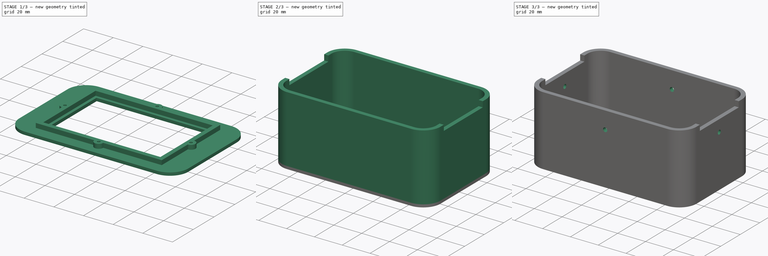
[diagram: build sequence overview — one tinted view per stage of 3, left to right]
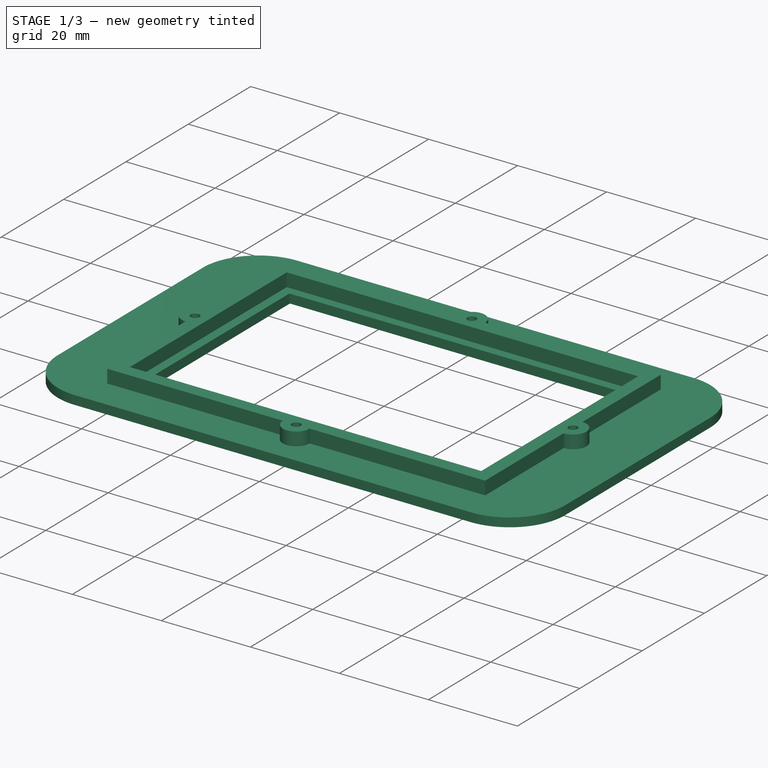
[diagram: stage 1 of 3 — iso view after this stage's code; geometry added in this stage tinted green]
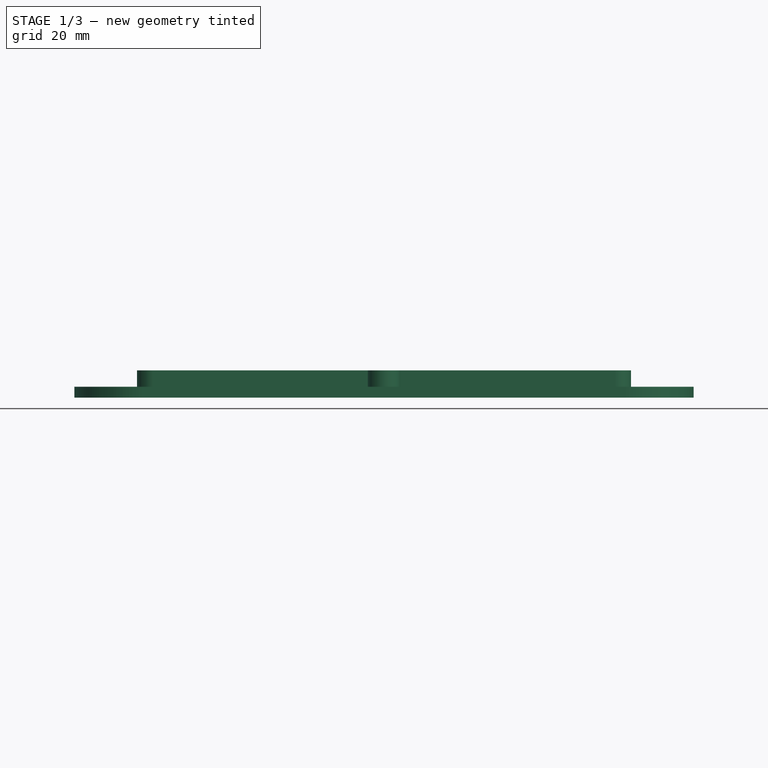
[diagram: stage 1 of 3 — front view after this stage's code; geometry added in this stage tinted green]
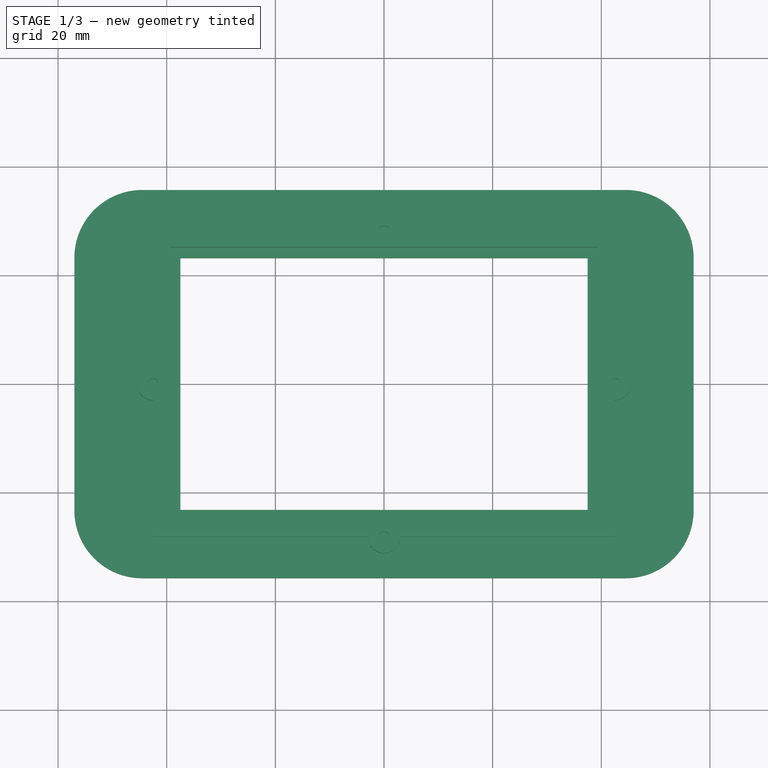
[diagram: stage 1 of 3 — top view after this stage's code; geometry added in this stage tinted green]
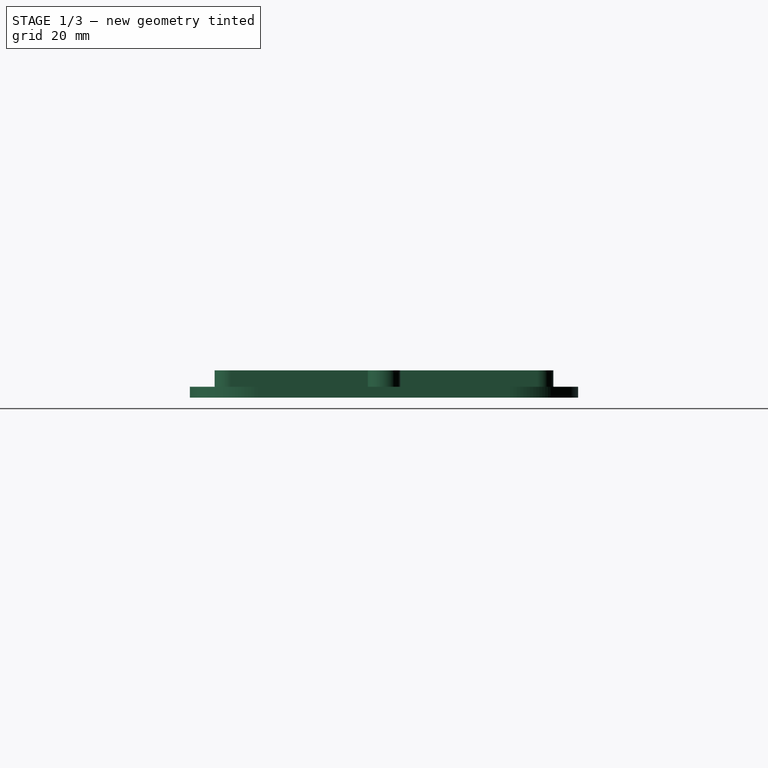
[diagram: stage 1 of 3 — right view after this stage's code; geometry added in this stage tinted green]
FCSTD DOCUMENT  (FreeCAD 0.20R29603 (Git))
Label: shell
License: All rights reserved
LicenseURL: http://en.wikipedia.org/wiki/All_rights_reserved
objects: Sketcher::SketchObject×6, PartDesign::Pad×4, PartDesign::Pocket×2, PartDesign::PolarPattern×1, PartDesign::Body×1
note: 20 computed .brp shape members not serialized (recipe doc carries the construction recipe); baked Part::Feature solids carry a one-line shape summary decoded from their .brp

FEATURE [Sketcher::SketchObject] Sketch002  label="pcb"
  FullyConstrained = true
  MapMode = 5
  Support = -> [XY_Plane]
  sketch-geometry (9):
    g0: Circle CenterX=-46 CenterY=24.735 CenterZ=0 NormalX=0 NormalY=0 NormalZ=1 AngleXU=0 Radius=1
    g1: Circle CenterX=46 CenterY=24.735 CenterZ=0 NormalX=0 NormalY=0 NormalZ=1 AngleXU=0 Radius=1
    g2: Circle CenterX=46 CenterY=-24.735 CenterZ=0 NormalX=0 NormalY=0 NormalZ=1 AngleXU=0 Radius=1
    g3: Circle CenterX=-46 CenterY=-24.735 CenterZ=0 NormalX=0 NormalY=0 NormalZ=1 AngleXU=0 Radius=1
    g4: Circle CenterX=-46 CenterY=24.735 CenterZ=0 NormalX=0 NormalY=0 NormalZ=1 AngleXU=0 Radius=3
    g5: Circle CenterX=46 CenterY=24.735 CenterZ=0 NormalX=0 NormalY=0 NormalZ=1 AngleXU=0 Radius=3
    g6: Circle CenterX=46 CenterY=-24.735 CenterZ=0 NormalX=0 NormalY=0 NormalZ=1 AngleXU=0 Radius=3
    g7: Circle CenterX=-46 CenterY=-24.735 CenterZ=0 NormalX=0 NormalY=0 NormalZ=1 AngleXU=0 Radius=3
    g8: GeomPoint X=-46 Y=24.735 Z=0
  constraints (18):
    c: Coincident(g4,g0)
    c: Coincident(g5,g1)
    c: Coincident(g6,g2)
    c: Coincident(g7,g3)
    c: Equal(g3,g0)
    c: Equal(g0,g1)
    c: Equal(g1,g2)
    c: Diameter(g0) = 2
    c: Equal(g5,g4)
    c: Equal(g4,g7)
    c: Equal(g7,g6)
    c: Diameter(g4) = 6
    c: Symmetric(g0,g3,g-1)
    c: Symmetric(g0,g1,g-2)
    c: Symmetric(g1,g2,g-1)
    c: DistanceX(g0,g1) = 92
    c: DistanceY(g3,g0) = 49.47
    c: Coincident(g8,g0)
FEATURE [Sketcher::SketchObject] Sketch001  label="front"
  ExternalGeometry = -> [Sketch002]
  FullyConstrained = true
  MapMode = 5
  Support = -> [XY_Plane]
  sketch-geometry (15):
    g0: GeomPoint X=0 Y=0 Z=0
    g1: LineSegment StartX=-57 StartY=23.235 StartZ=0 EndX=-57 EndY=-23.235 EndZ=0
    g2: LineSegment StartX=-44.5 StartY=-35.735 StartZ=0 EndX=44.5 EndY=-35.735 EndZ=0
    g3: LineSegment StartX=57 StartY=-23.235 StartZ=0 EndX=57 EndY=23.235 EndZ=0
    g4: LineSegment StartX=44.5 StartY=35.735 StartZ=0 EndX=-44.5 EndY=35.735 EndZ=0
    g5: GeomPoint X=0 Y=0 Z=0
    g6: LineSegment StartX=-37.48 StartY=23.17 StartZ=0 EndX=-37.48 EndY=-23.17 EndZ=0
    g7: LineSegment StartX=-37.48 StartY=-23.17 StartZ=0 EndX=37.48 EndY=-23.17 EndZ=0
    g8: LineSegment StartX=37.48 StartY=-23.17 StartZ=0 EndX=37.48 EndY=23.17 EndZ=0
    g9: LineSegment StartX=37.48 StartY=23.17 StartZ=0 EndX=-37.48 EndY=23.17 EndZ=0
    g10: GeomPoint X=0 Y=0 Z=0
    g11: ArcOfCircle CenterX=-44.5 CenterY=23.235 CenterZ=0 NormalX=0 NormalY=0 NormalZ=1 AngleXU=0 Radius=12.5 StartAngle=1.5708 EndAngle=3.14159
    g12: ArcOfCircle CenterX=44.5 CenterY=23.235 CenterZ=0 NormalX=0 NormalY=0 NormalZ=1 AngleXU=0 Radius=12.5 StartAngle=0 EndAngle=1.5708
    g13: ArcOfCircle CenterX=44.5 CenterY=-23.235 CenterZ=0 NormalX=0 NormalY=0 NormalZ=1 AngleXU=0 Radius=12.5 StartAngle=4.71239 EndAngle=6.28319
    g14: ArcOfCircle CenterX=-44.5 CenterY=-23.235 CenterZ=0 NormalX=0 NormalY=0 NormalZ=1 AngleXU=0 Radius=12.5 StartAngle=3.14159 EndAngle=4.71239
  constraints (33):
    c: Coincident(g0,g-1)
    c: Horizontal(g2)
    c: Horizontal(g4)
    c: Vertical(g1)
    c: Vertical(g3)
    c: Coincident(g5,g0)
    c: Coincident(g6,g7)
    c: Coincident(g7,g8)
    c: Coincident(g8,g9)
    c: Coincident(g9,g6)
    c: Horizontal(g7)
    c: Horizontal(g9)
    c: Vertical(g6)
    c: Vertical(g8)
    c: Symmetric(g7,g6,g10)
    c: Coincident(g10,g0)
    c: DistanceX(g9,g9) = 74.96
    c: DistanceY(g6,g6) = 46.34
    c: Tangent(g4,g11) = -1.5708
    c: Tangent(g1,g11) = -1.5708
    c: Tangent(g4,g12) = -1.5708
    c: Tangent(g3,g12) = -1.5708
    c: Tangent(g3,g13) = -1.5708
    c: Tangent(g2,g13) = -1.5708
    c: Tangent(g1,g14) = -1.5708
    c: Tangent(g2,g14) = -1.5708
    c: Equal(g14,g11)
    c: Equal(g11,g12)
    c: Equal(g11,g13)
    c: Diameter(g11) = 25
    c: Symmetric(g13,g11,g0)
    c: DistanceX(g1,g-3) = 11
    c: DistanceY(g-3,g4) = 11
FEATURE [Sketcher::SketchObject] Sketch  label="glass"
  ExternalGeometry = -> [Sketch001]
  FullyConstrained = true
  MapMode = 5
  Support = -> [XY_Plane]
  sketch-geometry (20):
    g0: Circle CenterX=42.48 CenterY=0 CenterZ=0 NormalX=0 NormalY=0 NormalZ=1 AngleXU=0 Radius=1
    g1: Circle CenterX=0 CenterY=-28.17 CenterZ=0 NormalX=0 NormalY=0 NormalZ=1 AngleXU=0 Radius=1
    g2: Circle CenterX=-42.48 CenterY=0 CenterZ=0 NormalX=0 NormalY=0 NormalZ=1 AngleXU=0 Radius=1
    g3: Circle CenterX=0 CenterY=28.17 CenterZ=0 NormalX=0 NormalY=0 NormalZ=1 AngleXU=0 Radius=1
    g4: LineSegment StartX=39.48 StartY=-25.17 StartZ=0 EndX=39.48 EndY=25.17 EndZ=0
    g5: LineSegment StartX=39.48 StartY=25.17 StartZ=0 EndX=-39.48 EndY=25.17 EndZ=0
    g6: LineSegment StartX=-39.48 StartY=25.17 StartZ=0 EndX=-39.48 EndY=-25.17 EndZ=0
    g7: LineSegment StartX=-39.48 StartY=-25.17 StartZ=0 EndX=39.48 EndY=-25.17 EndZ=0
    g8: LineSegment StartX=-42.48 StartY=28.17 StartZ=0 EndX=-3 EndY=28.17 EndZ=0
    g9: LineSegment StartX=3 StartY=28.17 StartZ=0 EndX=42.48 EndY=28.17 EndZ=0
    g10: LineSegment StartX=-42.48 StartY=28.17 StartZ=0 EndX=-42.48 EndY=3 EndZ=0
    g11: LineSegment StartX=-42.48 StartY=-3 StartZ=0 EndX=-42.48 EndY=-28.17 EndZ=0
    g12: LineSegment StartX=-42.48 StartY=-28.17 StartZ=0 EndX=-3 EndY=-28.17 EndZ=0
    g13: LineSegment StartX=3 StartY=-28.17 StartZ=0 EndX=42.48 EndY=-28.17 EndZ=0
    g14: LineSegment StartX=42.48 StartY=28.17 StartZ=0 EndX=42.48 EndY=3 EndZ=0
    g15: LineSegment StartX=42.48 StartY=-3 StartZ=0 EndX=42.48 EndY=-28.17 EndZ=0
    g16: ArcOfCircle CenterX=-42.48 CenterY=0 CenterZ=0 NormalX=0 NormalY=0 NormalZ=1 AngleXU=0 Radius=3 StartAngle=1.5708 EndAngle=4.71239
    g17: ArcOfCircle CenterX=0 CenterY=28.17 CenterZ=0 NormalX=0 NormalY=0 NormalZ=1 AngleXU=0 Radius=3 StartAngle=0 EndAngle=3.14159
    g18: ArcOfCircle CenterX=42.48 CenterY=0 CenterZ=0 NormalX=0 NormalY=0 NormalZ=1 AngleXU=0 Radius=3 StartAngle=4.71239 EndAngle=7.85398
    g19: ArcOfCircle CenterX=0 CenterY=-28.17 CenterZ=0 NormalX=0 NormalY=0 NormalZ=1 AngleXU=0 Radius=3 StartAngle=3.14159 EndAngle=6.28319
  constraints (59):
    c: Equal(g3,g0)
    c: Equal(g0,g1)
    c: Equal(g1,g2)
    c: Coincident(g4,g5)
    c: Coincident(g5,g6)
    c: Coincident(g6,g7)
    c: Coincident(g7,g4)
    c: Horizontal(g5)
    c: Horizontal(g7)
    c: Vertical(g4)
    c: Vertical(g6)
    c: Diameter(g0) = 2
    c: Vertical(g14,g15)
    c: Vertical(g0,g14)
    c: Horizontal(g8,g3)
    c: Horizontal(g3,g9)
    c: Vertical(g10,g2)
    c: Vertical(g2,g11)
    c: PointOnObject(g1,g-2)
    c: PointOnObject(g2,g-1)
    c: PointOnObject(g3,g-2)
    c: PointOnObject(g0,g-1)
    c: Symmetric(g8,g13,g-1)
    c: Horizontal(g8)
    c: Horizontal(g9)
    c: Coincident(g10,g8)
    c: Vertical(g10)
    c: Vertical(g11)
    c: Coincident(g12,g11)
    c: Horizontal(g12)
    c: Horizontal(g13)
    c: Coincident(g14,g9)
    c: Vertical(g14)
    c: Coincident(g15,g13)
    c: Vertical(g15)
    c: Horizontal(g12,g13)
    c: Coincident(g16,g2)
    c: Coincident(g16,g10)
    c: Coincident(g16,g11)
    c: Coincident(g17,g3)
    c: Coincident(g17,g8)
    c: Coincident(g17,g9)
    c: Coincident(g18,g0)
    c: Coincident(g18,g14)
    c: Coincident(g18,g15)
    c: Coincident(g19,g1)
    c: Coincident(g19,g13)
    c: Coincident(g19,g12)
    c: Equal(g17,g18)
    c: Equal(g18,g19)
    c: Equal(g19,g16)
    c: Diameter(g16) = 6
    c: DistanceY(g5,g8) = 3
    c: DistanceX(g8,g5) = 3
    c: DistanceX(g4,g9) = 3
    c: DistanceY(g13,g4) = 3
    c: DistanceX(g5,g-5) = 2
    c: DistanceY(g-5,g5) = 2
    c: Horizontal(g12,g1)
FEATURE [PartDesign::Pad] Pad
  AlongSketchNormal = false
  Direction = (0,0,1)
  Length = 5
  Length2 = 100
  Profile = -> Sketch
  ReferenceAxis = -> Sketch [N_Axis]
  Type = 0
FEATURE [PartDesign::Pad] Pad001
  AlongSketchNormal = false
  BaseFeature = -> Pad
  Direction = (0,0,1)
  Length = 2
  Length2 = 100
  Profile = -> Sketch001
  ReferenceAxis = -> Sketch001 [N_Axis]
  Type = 0
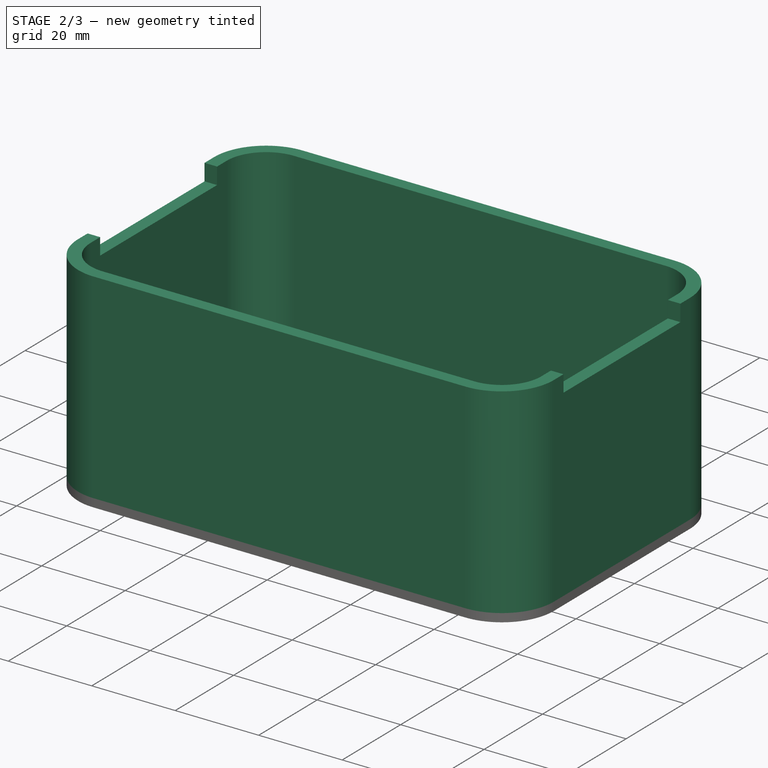
[diagram: stage 2 of 3 — iso view after this stage's code; geometry added in this stage tinted green]
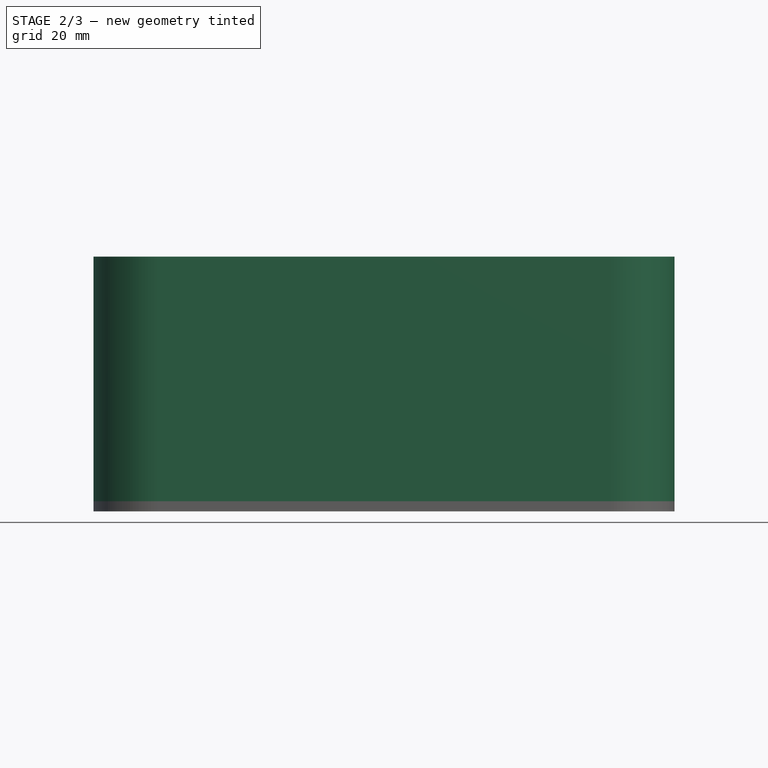
[diagram: stage 2 of 3 — front view after this stage's code; geometry added in this stage tinted green]
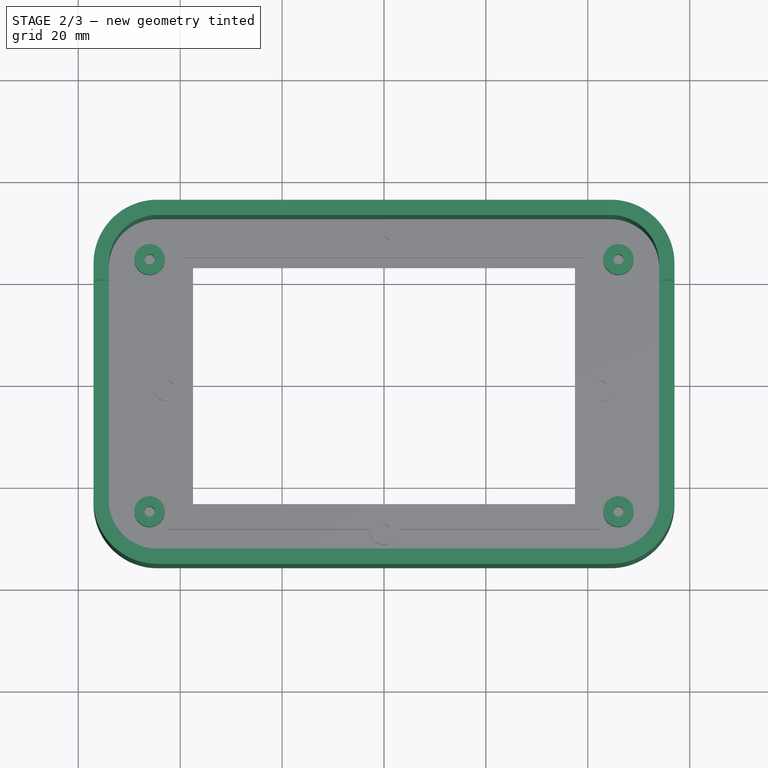
[diagram: stage 2 of 3 — top view after this stage's code; geometry added in this stage tinted green]
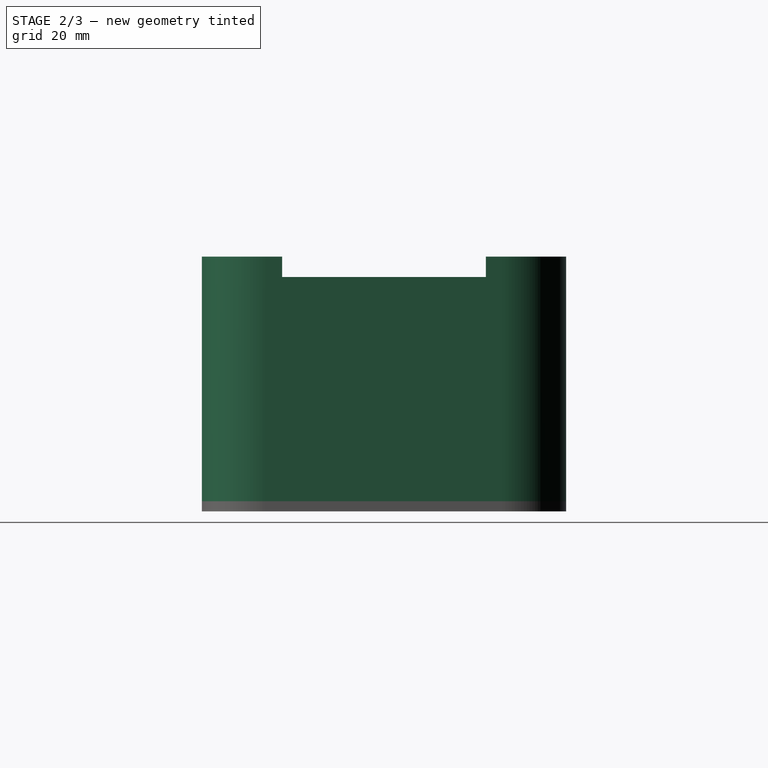
[diagram: stage 2 of 3 — right view after this stage's code; geometry added in this stage tinted green]
FEATURE [PartDesign::Pad] Pad002
  AlongSketchNormal = false
  BaseFeature = -> Pad001
  Direction = (0,0,1)
  Length = 10
  Length2 = 100
  Profile = -> Sketch002
  ReferenceAxis = -> Sketch002 [N_Axis]
  Type = 0
FEATURE [Sketcher::SketchObject] Sketch003  label="wall"
  ExternalGeometry = -> [Sketch001]
  FullyConstrained = true
  MapMode = 5
  Support = -> [XY_Plane]
  sketch-geometry (17):
    g0: LineSegment StartX=-44.5 StartY=35.735 StartZ=0 EndX=44.5 EndY=35.735 EndZ=0
    g1: LineSegment StartX=57 StartY=23.235 StartZ=0 EndX=57 EndY=-23.235 EndZ=0
    g2: LineSegment StartX=44.5 StartY=-35.735 StartZ=0 EndX=-44.5 EndY=-35.735 EndZ=0
    g3: LineSegment StartX=-57 StartY=-23.235 StartZ=0 EndX=-57 EndY=23.235 EndZ=0
    g4: ArcOfCircle CenterX=-44.5 CenterY=23.235 CenterZ=0 NormalX=0 NormalY=0 NormalZ=1 AngleXU=0 Radius=12.5 StartAngle=1.5708 EndAngle=3.14159
    g5: ArcOfCircle CenterX=44.5 CenterY=23.235 CenterZ=0 NormalX=0 NormalY=0 NormalZ=1 AngleXU=0 Radius=12.5 StartAngle=4e-16 EndAngle=1.5708
    g6: ArcOfCircle CenterX=44.5 CenterY=-23.235 CenterZ=0 NormalX=0 NormalY=0 NormalZ=1 AngleXU=0 Radius=12.5 StartAngle=4.71239 EndAngle=6.28319
    g7: ArcOfCircle CenterX=-44.5 CenterY=-23.235 CenterZ=0 NormalX=0 NormalY=0 NormalZ=1 AngleXU=0 Radius=12.5 StartAngle=3.14159 EndAngle=4.71239
    g8: LineSegment StartX=-54 StartY=23.235 StartZ=0 EndX=-54 EndY=-23.235 EndZ=0
    g9: LineSegment StartX=-44.5 StartY=-32.735 StartZ=0 EndX=44.5 EndY=-32.735 EndZ=0
    g10: LineSegment StartX=54 StartY=-23.235 StartZ=0 EndX=54 EndY=23.235 EndZ=0
    g11: LineSegment StartX=44.5 StartY=32.735 StartZ=0 EndX=-44.5 EndY=32.735 EndZ=0
    g12: GeomPoint X=0 Y=0 Z=0
    g13: ArcOfCircle CenterX=-44.5 CenterY=23.235 CenterZ=0 NormalX=0 NormalY=0 NormalZ=1 AngleXU=0 Radius=9.5 StartAngle=1.5708 EndAngle=3.14159
    g14: ArcOfCircle CenterX=-44.5 CenterY=-23.235 CenterZ=0 NormalX=0 NormalY=0 NormalZ=1 AngleXU=0 Radius=9.5 StartAngle=3.14159 EndAngle=4.71239
    g15: ArcOfCircle CenterX=44.5 CenterY=-23.235 CenterZ=0 NormalX=0 NormalY=0 NormalZ=1 AngleXU=0 Radius=9.5 StartAngle=4.71239 EndAngle=6.28319
    g16: ArcOfCircle CenterX=44.5 CenterY=23.235 CenterZ=0 NormalX=0 NormalY=0 NormalZ=1 AngleXU=0 Radius=9.5 StartAngle=1e-16 EndAngle=1.5708
  constraints (40):
    c: Coincident(g0,g-6)
    c: Coincident(g0,g-6)
    c: Coincident(g1,g-5)
    c: Coincident(g1,g-5)
    c: Coincident(g2,g-4)
    c: Coincident(g2,g-4)
    c: Coincident(g3,g-3)
    c: Coincident(g3,g-3)
    c: Coincident(g4,g3)
    c: Coincident(g5,g0)
    c: Coincident(g5,g1)
    c: Coincident(g6,g1)
    c: Coincident(g6,g2)
    c: Coincident(g7,g3)
    c: Coincident(g7,g2)
    c: Equal(g4,g7)
    c: Equal(g4,g5)
    c: Equal(g4,g6)
    c: Tangent(g4,g0) = 1.5708
    c: Horizontal(g9)
    c: Horizontal(g11)
    c: Vertical(g8)
    c: Vertical(g10)
    c: Coincident(g12,g-1)
    c: Tangent(g11,g13) = -1.5708
    c: Tangent(g8,g13) = -1.5708
    c: Tangent(g8,g14) = -1.5708
    c: Tangent(g9,g14) = -1.5708
    c: Tangent(g9,g15) = -1.5708
    c: Tangent(g10,g15) = -1.5708
    c: Tangent(g11,g16) = -1.5708
    c: Tangent(g10,g16) = -1.5708
    c: Vertical(g0,g11)
    c: Horizontal(g3,g8)
    c: Equal(g13,g14)
    c: Horizontal(g10,g1)
    c: Vertical(g9,g2)
    c: Horizontal(g8,g3)
    c: Vertical(g11,g0)
    c: DistanceY(g11,g0) = 3
FEATURE [PartDesign::Pad] Pad003
  AlongSketchNormal = false
  BaseFeature = -> Pad002
  Direction = (0,0,1)
  Length = 50
  Length2 = 100
  Profile = -> Sketch003
  ReferenceAxis = -> Sketch003 [N_Axis]
  Type = 0
FEATURE [Sketcher::SketchObject] Sketch004  label="strap"
  FullyConstrained = true
  MapMode = 5
  Placement = pos=(0,0,0) rot=(0.57735,0.57735,0.57735;2.0944rad)
  Support = -> [YZ_Plane]
  sketch-geometry (5):
    g0: LineSegment StartX=-20 StartY=50 StartZ=0 EndX=-20 EndY=46 EndZ=0
    g1: LineSegment StartX=-20 StartY=46 StartZ=0 EndX=20 EndY=46 EndZ=0
    g2: LineSegment StartX=20 StartY=46 StartZ=0 EndX=20 EndY=50 EndZ=0
    g3: LineSegment StartX=20 StartY=50 StartZ=0 EndX=-20 EndY=50 EndZ=0
    g4: GeomPoint X=1e-16 Y=48 Z=0
  constraints (13):
    c: Coincident(g0,g1)
    c: Coincident(g1,g2)
    c: Coincident(g2,g3)
    c: Coincident(g3,g0)
    c: Horizontal(g1)
    c: Horizontal(g3)
    c: Vertical(g0)
    c: Vertical(g2)
    c: Symmetric(g1,g0,g4)
    c: PointOnObject(g4,g-2)
    c: DistanceX(g3,g3) = 40
    c: DistanceY(g0,g0) = 4
    c: DistanceY(g-1,g0) = 50
FEATURE [PartDesign::Pocket] Pocket
  BaseFeature = -> Pad003
  Direction = (-1,2e-16,-3e-16)
  Length = 5
  Length2 = 5
  Midplane = true
  Profile = -> Sketch004
  ReferenceAxis = -> Sketch004 [N_Axis]
  Type = 1
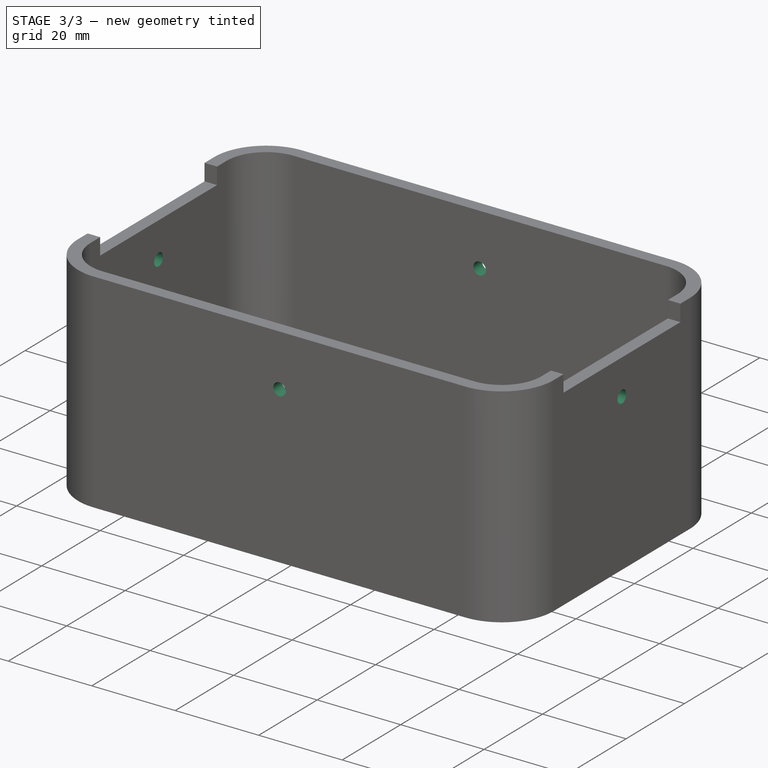
[diagram: stage 3 of 3 — iso view after this stage's code; geometry added in this stage tinted green]
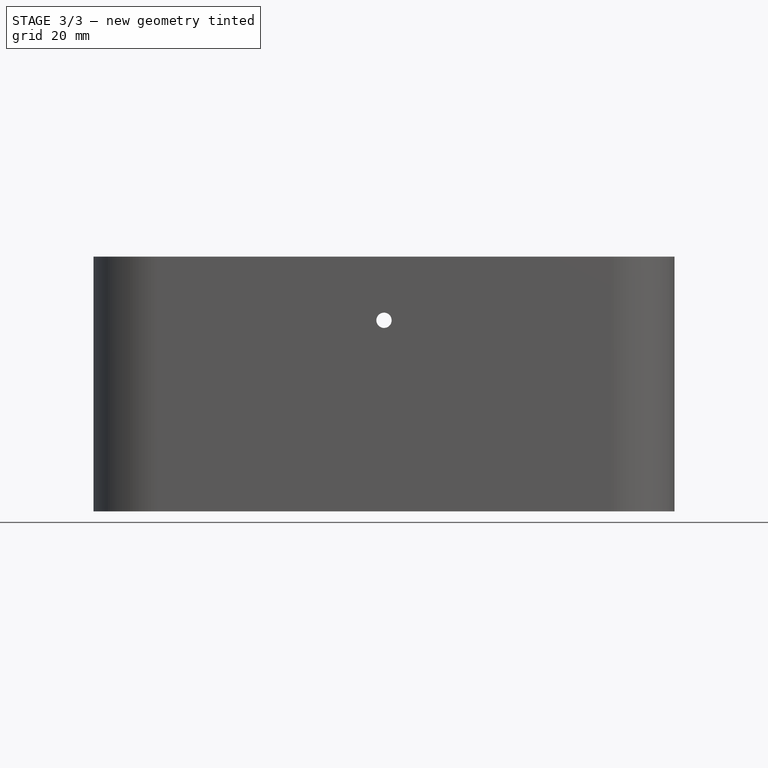
[diagram: stage 3 of 3 — front view after this stage's code; geometry added in this stage tinted green]
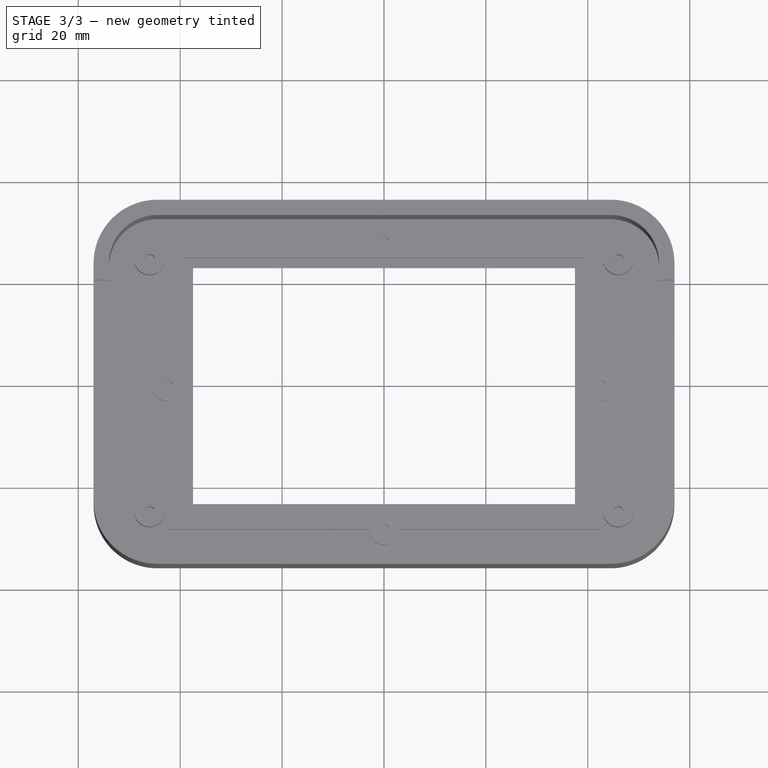
[diagram: stage 3 of 3 — top view after this stage's code; geometry added in this stage tinted green]
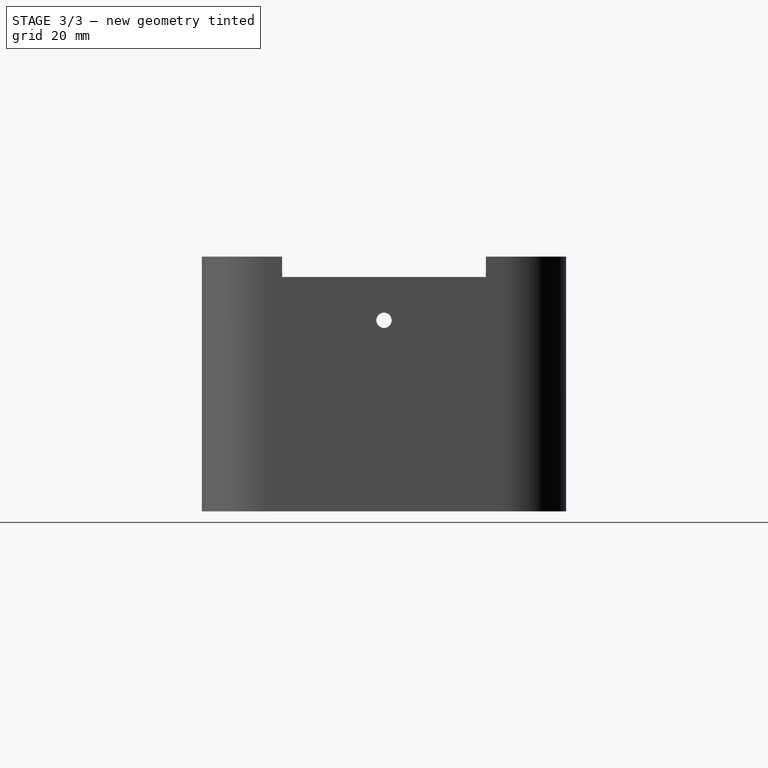
[diagram: stage 3 of 3 — right view after this stage's code; geometry added in this stage tinted green]
FEATURE [Sketcher::SketchObject] Sketch005
  FullyConstrained = true
  MapMode = 5
  Placement = pos=(0,0,0) rot=(1,0,0;1.5708rad)
  Support = -> [XZ_Plane]
  expr: Constraints[1] = 50 - 12.5
  sketch-geometry (1):
    g0: Circle CenterX=0 CenterY=37.5 CenterZ=0 NormalX=0 NormalY=0 NormalZ=1 AngleXU=0 Radius=1.5
  constraints (3):
    c: PointOnObject(g0,g-2)
    c: DistanceY(g-1,g0) = 37.5
    c: Diameter(g0) = 3
FEATURE [PartDesign::Pocket] Pocket001
  BaseFeature = -> Pocket
  Direction = (0,1,2e-16)
  Length = 5
  Length2 = 5
  Profile = -> Sketch005
  ReferenceAxis = -> Sketch005 [N_Axis]
  Type = 1
FEATURE [PartDesign::PolarPattern] PolarPattern
  Angle = 360
  Axis = -> Sketch005 [V_Axis]
  BaseFeature = -> Pocket001
  Occurrences = 4
  Originals = -> [Pocket001]
FEATURE [PartDesign::Body] Body
  Group = -> [Sketch,Pad,Sketch001,Pad001,Sketch002,Pad002,Sketch003,Pad003,Sketch004,Pocket,Sketch005,Pocket001,PolarPattern]
  Origin = -> Origin
  Tip = -> PolarPattern
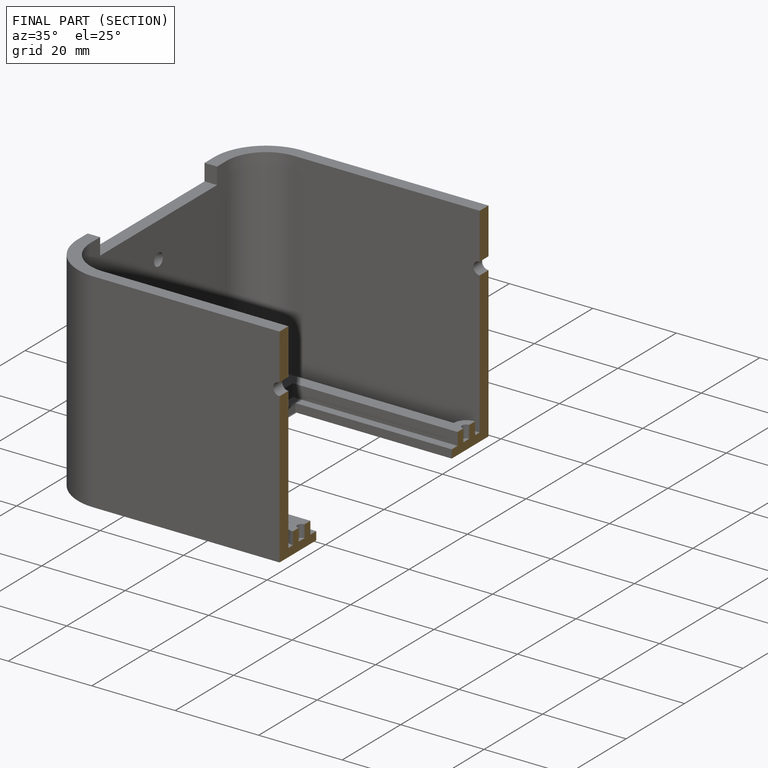
[diagram: finished part — half-section view (interior)]
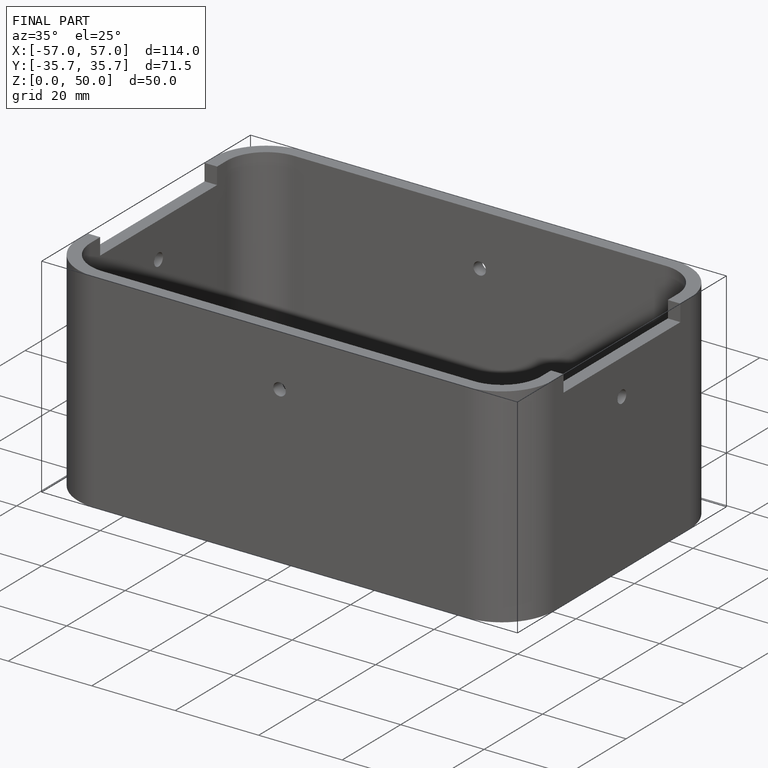
[diagram: finished part — iso view with bounding-box wireframe]
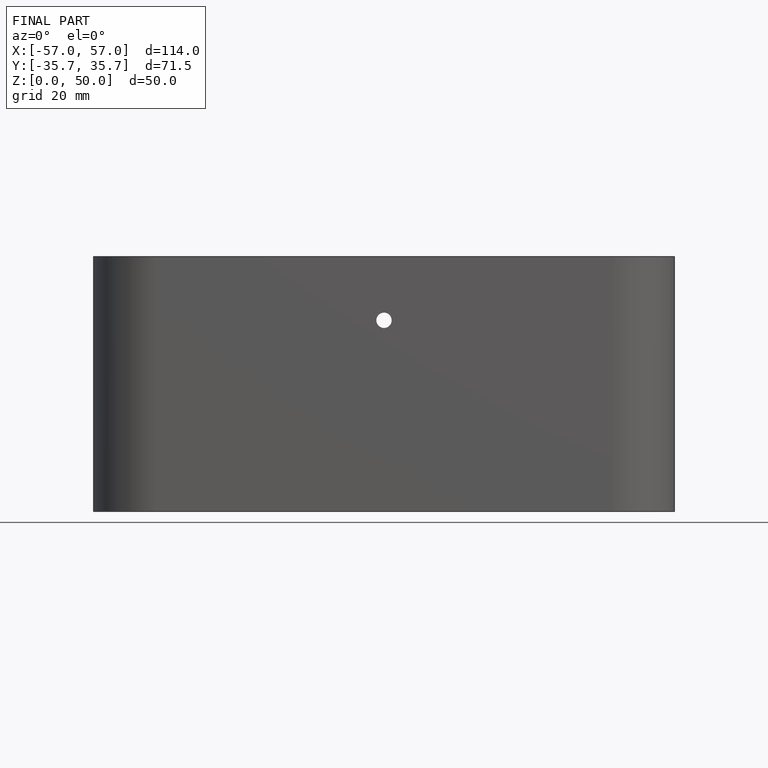
[diagram: finished part — front view with bounding-box wireframe]
